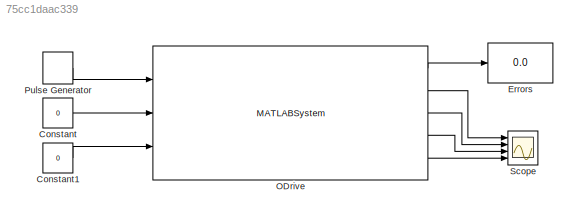
MODEL slx_75cc1daac339
KIND model
CONFIG AbsTol = auto
CONFIG EnableMultiTasking = off
CONFIG FixedStep = auto
CONFIG MaxStep = auto
CONFIG MinStep = auto
CONFIG RelTol = 1e-3
CONFIG SampleTimeConstraint = Unconstrained
CONFIG Solver = FixedStepAuto
CONFIG SolverName = FixedStepAuto
CONFIG StartTime = 0.0
CONFIG StopTime = Inf
BLOCK [Constant] Constant
  Value = 0
BLOCK [Constant] Constant1
  Value = 0
BLOCK [Display] Errors
  Decimation = 1
  Format = hex (Stored Integer)
  Ports = [1]
BLOCK [MATLABSystem] ODrive
  MaskDisplay = disp(['ODrive' char(10) '' char(10) 'Serial: 123456789ABC' char(10) '' char(10) 'M0: Position control' char(10) 'M1: Disable']);\nport_label('input',1,'M0 position ref');\nport_label('input',2,'M0 velocity ref');\nport_label('input',3,'M0 current ref');\nport_label('output',1,'Axis error');\nport_label('output',2,'M0 position act');\nport_label('output',3,'M0 velocity act');\nport_label('output',4,'M0 cu...<+58ch>
  MaskType = ODriveRasPi
  Ports = [3, 5]
  SampleTime = 0.01
  System = ODriveRasPi
  ctrlMode0 = Position
  ctrlMode1 = Position
  isAxis0 = on
  isAxis1 = off
  isExternal0 = off
  isExternal1 = off
  isInCpr0 = off
  isInCpr1 = off
  isPort = off
  isVelRamp0 = off
  isVelRamp1 = off
  portName = /dev/ttyACM0
  posGain0 = 20.0
  posGain1 = 20.0
  serial = 123456789ABC
  velGain0 = 0.0005
  velGain1 = 0.0005
  velIGain0 = 0.001
  velIGain1 = 0.001
  velLimit0 = 20000.0
  velLimit1 = 20000.0
  velLimitTol0 = 1.2
  velLimitTol1 = 1.2
  velRampRate0 = 10000.0
  velRampRate1 = 10000.0
  watchdog0 = 0
  watchdog1 = 0
BLOCK [DiscretePulseGenerator] Pulse Generator
  Amplitude = 100000
  Period = 100
  PhaseDelay = 1
  Ports = [0, 1]
  PulseWidth = 50
  SampleTime = 0.1
BLOCK [Scope] Scope
  Floating = off
  NumInputPorts = 4
  Ports = [4]
  ScopeSpecificationString = Simulink.scopes.TimeScopeBlockCfg('CurrentConfiguration', extmgr.ConfigurationSet(extmgr.Configuration('Core','General UI',true),extmgr.Configuration('Core','Source UI',true),extmgr.Configuration('Sources','WiredSimulink',true),extmgr.Configuration('Visuals','Time Domain',true,'SerializedDisplays',{struct('MinYLimReal','-1.00000','MaxYLimReal','1.00000','YLabelReal','','MinYLimMag','0.00000','MaxY...<+3331ch>
LINE Constant1:1 -> ODrive:3
LINE Constant:1 -> ODrive:2
LINE ODrive:1 -> Errors:1
LINE ODrive:2 -> Scope:1
LINE ODrive:3 -> Scope:2
LINE ODrive:4 -> Scope:3
LINE ODrive:5 -> Scope:4
LINE Pulse Generator:1 -> ODrive:1
